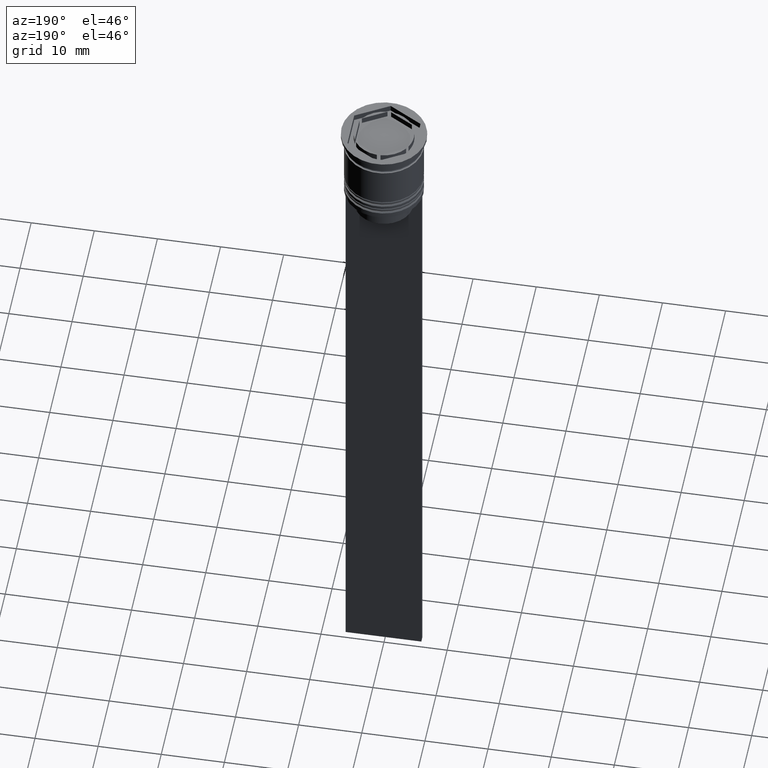
[diagram: clean part render]
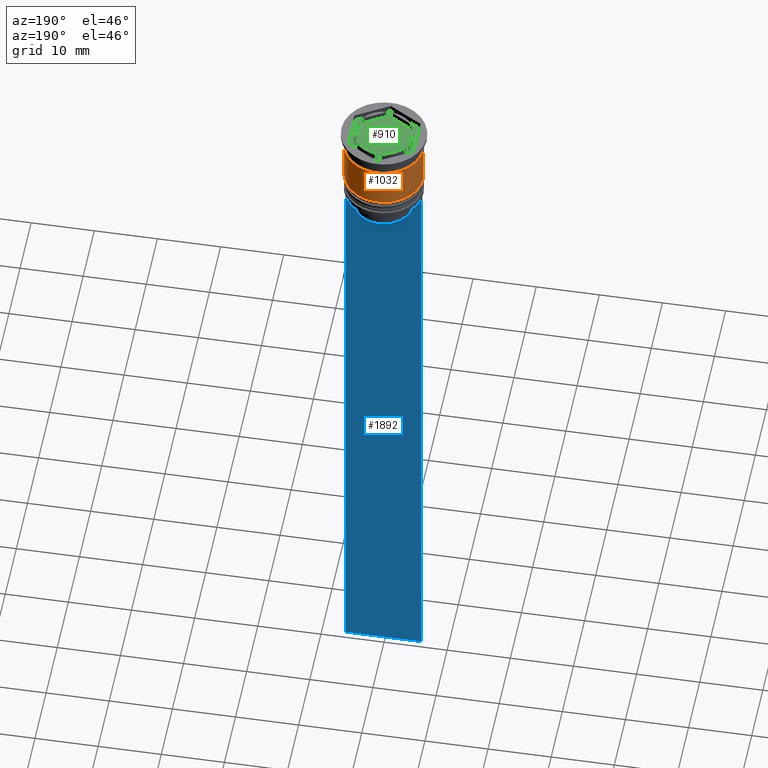
[diagram: same view with three faces highlighted in distinct colors, each labeled with its STEP entity id]
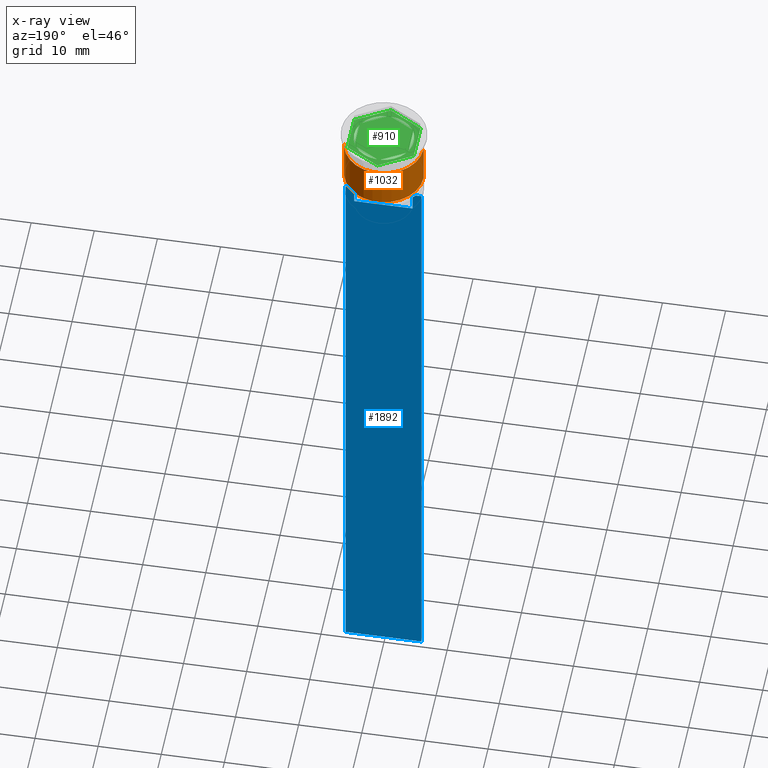
[diagram: x-ray of the same camera — body ghosted, the three highlighted faces saturated]
A machine part, auxiliary view with three faces highlighted in distinct colors.
The next image is the same camera in x-ray (body ghosted, the three faces saturated) — at least one of them is partly hidden behind the body in this view.
Their STEP definitions:

[orange] entity #1032 — the highlighted cylindrical surface (partial cylindrical patch) has radius 6.25 mm, axis along (-0, -0, 1).
#120 = DIRECTION ( 'NONE',  ( -0.000000000000000000, -0.000000000000000000, 1.000000000000000000 ) ) ;
#243 = CIRCLE ( 'NONE', #1158, 6.249999999999999112 ) ;
#340 = ORIENTED_EDGE ( 'NONE', *, *, #2213, .F. ) ;
#466 = CIRCLE ( 'NONE', #533, 6.250000000000000888 ) ;
#531 = CARTESIAN_POINT ( 'NONE',  ( 6.250000000000000888, 0.000000000000000000, -9.000000000000001776 ) ) ;
#533 = AXIS2_PLACEMENT_3D ( 'NONE', #1918, #2077, #1526 ) ;
#628 = VERTEX_POINT ( 'NONE', #531 ) ;
#677 = EDGE_CURVE ( 'NONE', #628, #1986, #1264, .T. ) ;
#742 = CYLINDRICAL_SURFACE ( 'NONE', #1899, 6.250000000000000000 ) ;
#752 = VECTOR ( 'NONE', #2197, 1000.000000000000000 ) ;
#788 = EDGE_CURVE ( 'NONE', #628, #1452, #466, .T. ) ;
#835 = DIRECTION ( 'NONE',  ( 1.000000000000000000, 0.000000000000000000, 0.000000000000000000 ) ) ;
#846 = ORIENTED_EDGE ( 'NONE', *, *, #677, .F. ) ;
#1032 = ADVANCED_FACE ( 'NONE', ( #1291 ), #742, .T. ) ;
#1043 = CARTESIAN_POINT ( 'NONE',  ( 0.000000000000000000, 0.000000000000000000, 0.000000000000000000 ) ) ;
#1053 = DIRECTION ( 'NONE',  ( -0.000000000000000000, -0.000000000000000000, 1.000000000000000000 ) ) ;
#1142 = CARTESIAN_POINT ( 'NONE',  ( -6.250000000000000000, 7.654042494670957606E-16, 0.000000000000000000 ) ) ;
#1158 = AXIS2_PLACEMENT_3D ( 'NONE', #1589, #120, #835 ) ;
#1264 = LINE ( 'NONE', #2018, #752 ) ;
#1285 = EDGE_CURVE ( 'NONE', #1452, #2307, #2043, .T. ) ;
#1291 = FACE_OUTER_BOUND ( 'NONE', #1979, .T. ) ;
#1380 = CARTESIAN_POINT ( 'NONE',  ( -6.249999999999999112, 7.654042494670956620E-16, -2.500000000000000444 ) ) ;
#1452 = VERTEX_POINT ( 'NONE', #1644 ) ;
#1526 = DIRECTION ( 'NONE',  ( 1.000000000000000000, 0.000000000000000000, 0.000000000000000000 ) ) ;
#1536 = CARTESIAN_POINT ( 'NONE',  ( 6.249999999999999112, 0.000000000000000000, -2.500000000000000444 ) ) ;
#1589 = CARTESIAN_POINT ( 'NONE',  ( 0.000000000000000000, 0.000000000000000000, -2.500000000000000444 ) ) ;
#1644 = CARTESIAN_POINT ( 'NONE',  ( -6.250000000000001776, 7.654042494670959579E-16, -9.000000000000001776 ) ) ;
#1767 = DIRECTION ( 'NONE',  ( 1.000000000000000000, 0.000000000000000000, 0.000000000000000000 ) ) ;
#1817 = ORIENTED_EDGE ( 'NONE', *, *, #788, .T. ) ;
#1846 = ORIENTED_EDGE ( 'NONE', *, *, #1285, .T. ) ;
#1865 = VECTOR ( 'NONE', #2222, 1000.000000000000000 ) ;
#1899 = AXIS2_PLACEMENT_3D ( 'NONE', #1043, #1053, #1767 ) ;
#1918 = CARTESIAN_POINT ( 'NONE',  ( 0.000000000000000000, 0.000000000000000000, -9.000000000000001776 ) ) ;
#1979 = EDGE_LOOP ( 'NONE', ( #1817, #1846, #340, #846 ) ) ;
#1986 = VERTEX_POINT ( 'NONE', #1536 ) ;
#2018 = CARTESIAN_POINT ( 'NONE',  ( 6.250000000000000000, 0.000000000000000000, 0.000000000000000000 ) ) ;
#2043 = LINE ( 'NONE', #1142, #1865 ) ;
#2077 = DIRECTION ( 'NONE',  ( -0.000000000000000000, -0.000000000000000000, 1.000000000000000000 ) ) ;
#2197 = DIRECTION ( 'NONE',  ( -0.000000000000000000, -0.000000000000000000, 1.000000000000000000 ) ) ;
#2213 = EDGE_CURVE ( 'NONE', #1986, #2307, #243, .T. ) ;
#2222 = DIRECTION ( 'NONE',  ( -0.000000000000000000, -0.000000000000000000, 1.000000000000000000 ) ) ;
#2307 = VERTEX_POINT ( 'NONE', #1380 ) ;

[blue] entity #1892 — the highlighted planar face has unit normal (0, -1, -0).
#2 = CARTESIAN_POINT ( 'NONE',  ( 6.000000000000016875, 0.4999999999999982792, -112.5000000000000000 ) ) ;
#13 = EDGE_CURVE ( 'NONE', #1060, #1214, #1852, .T. ) ;
#14 = CARTESIAN_POINT ( 'NONE',  ( -4.623040125285526436, 0.4999999999999982792, -13.00000000000000178 ) ) ;
#84 = CARTESIAN_POINT ( 'NONE',  ( -5.999999999999983125, 0.4999999999999982792, -0.4584054212077061097 ) ) ;
#96 = EDGE_CURVE ( 'NONE', #673, #1060, #1738, .T. ) ;
#98 = CARTESIAN_POINT ( 'NONE',  ( 0.000000000000000000, 0.4999999999999987232, -15.50000000000000000 ) ) ;
#131 = ORIENTED_EDGE ( 'NONE', *, *, #776, .T. ) ;
#155 = VECTOR ( 'NONE', #801, 1000.000000000000000 ) ;
#168 = EDGE_CURVE ( 'NONE', #673, #2134, #2079, .T. ) ;
#179 = CARTESIAN_POINT ( 'NONE',  ( -4.623040125285526436, 0.4999999999999982792, -13.00000000000000178 ) ) ;
#207 = LINE ( 'NONE', #2325, #322 ) ;
#271 = CARTESIAN_POINT ( 'NONE',  ( 4.790630799407576745, 0.4999999999999982792, -12.83338098686239093 ) ) ;
#295 = LINE ( 'NONE', #481, #1990 ) ;
#318 = VERTEX_POINT ( 'NONE', #1400 ) ;
#322 = VECTOR ( 'NONE', #2137, 1000.000000000000000 ) ;
#351 = VECTOR ( 'NONE', #962, 1000.000000000000000 ) ;
#426 = CARTESIAN_POINT ( 'NONE',  ( 6.000000000000016875, 0.4999999999999982792, -112.5000000000000000 ) ) ;
#481 = CARTESIAN_POINT ( 'NONE',  ( 4.623040125285526436, 0.4999999999999982792, 0.000000000000000000 ) ) ;
#508 = CARTESIAN_POINT ( 'NONE',  ( 4.623040125285526436, 0.4999999999999987232, -15.50000000000000000 ) ) ;
#552 = CARTESIAN_POINT ( 'NONE',  ( -5.125670687822231564, 0.4999999999999982792, -12.50000000000000000 ) ) ;
#604 = LINE ( 'NONE', #1337, #1377 ) ;
#673 = VERTEX_POINT ( 'NONE', #907 ) ;
#691 = PLANE ( 'NONE',  #771 ) ;
#707 = EDGE_CURVE ( 'NONE', #1268, #2060, #2068, .T. ) ;
#725 = DIRECTION ( 'NONE',  ( 0.000000000000000000, 0.000000000000000000, -1.000000000000000000 ) ) ;
#771 = AXIS2_PLACEMENT_3D ( 'NONE', #2344, #2179, #725 ) ;
#776 = EDGE_CURVE ( 'NONE', #318, #1268, #604, .T. ) ;
#801 = DIRECTION ( 'NONE',  ( 0.000000000000000000, 0.000000000000000000, -1.000000000000000000 ) ) ;
#802 = EDGE_CURVE ( 'NONE', #1250, #318, #1329, .T. ) ;
#805 = CARTESIAN_POINT ( 'NONE',  ( -5.999999999999983125, 0.4999999999999982792, -112.5000000000000000 ) ) ;
#810 = DIRECTION ( 'NONE',  ( 1.000000000000000000, 0.000000000000000000, 0.000000000000000000 ) ) ;
#839 = CARTESIAN_POINT ( 'NONE',  ( -5.125670687822231564, 0.4999999999999982792, -12.50000000000000000 ) ) ;
#892 = CARTESIAN_POINT ( 'NONE',  ( 6.000000000000016875, 0.4999999999999982792, -12.50000000000000000 ) ) ;
#899 = ORIENTED_EDGE ( 'NONE', *, *, #1820, .T. ) ;
#907 = CARTESIAN_POINT ( 'NONE',  ( -5.999999999999983125, 0.4999999999999985012, -12.50000000000000000 ) ) ;
#946 = ORIENTED_EDGE ( 'NONE', *, *, #13, .T. ) ;
#962 = DIRECTION ( 'NONE',  ( 0.000000000000000000, 0.000000000000000000, -1.000000000000000000 ) ) ;
#1035 = ORIENTED_EDGE ( 'NONE', *, *, #1240, .T. ) ;
#1059 = VERTEX_POINT ( 'NONE', #508 ) ;
#1060 = VERTEX_POINT ( 'NONE', #839 ) ;
#1122 = EDGE_CURVE ( 'NONE', #1318, #1059, #1962, .T. ) ;
#1129 = CARTESIAN_POINT ( 'NONE',  ( -4.623040125285526436, 0.4999999999999987232, -15.50000000000000000 ) ) ;
#1157 = DIRECTION ( 'NONE',  ( 1.000000000000000000, 0.000000000000000000, 0.000000000000000000 ) ) ;
#1214 = VERTEX_POINT ( 'NONE', #179 ) ;
#1240 = EDGE_CURVE ( 'NONE', #2060, #2134, #2316, .T. ) ;
#1250 = VERTEX_POINT ( 'NONE', #2159 ) ;
#1268 = VERTEX_POINT ( 'NONE', #892 ) ;
#1282 = ORIENTED_EDGE ( 'NONE', *, *, #802, .T. ) ;
#1318 = VERTEX_POINT ( 'NONE', #1129 ) ;
#1329 = B_SPLINE_CURVE_WITH_KNOTS ( 'NONE', 3,
 ( #1736, #271, #1368, #1540 ),
 .UNSPECIFIED., .F., .F.,
 ( 4, 4 ),
 ( 0.02203698174624552433, 0.02275222543365896036 ),
 .UNSPECIFIED. ) ;
#1337 = CARTESIAN_POINT ( 'NONE',  ( 6.000000000000016875, 0.4999999999999982792, -12.50000000000000000 ) ) ;
#1368 = CARTESIAN_POINT ( 'NONE',  ( 4.958169719475987058, 0.4999999999999982792, -12.66670967060858111 ) ) ;
#1377 = VECTOR ( 'NONE', #1157, 1000.000000000000000 ) ;
#1400 = CARTESIAN_POINT ( 'NONE',  ( 5.125670687822231564, 0.4999999999999982792, -12.50000000000000000 ) ) ;
#1428 = DIRECTION ( 'NONE',  ( -1.000000000000000000, 0.000000000000000000, 0.000000000000000000 ) ) ;
#1471 = FACE_OUTER_BOUND ( 'NONE', #2118, .T. ) ;
#1540 = CARTESIAN_POINT ( 'NONE',  ( 5.125670687822231564, 0.4999999999999982792, -12.50000000000000000 ) ) ;
#1672 = ORIENTED_EDGE ( 'NONE', *, *, #1122, .T. ) ;
#1736 = CARTESIAN_POINT ( 'NONE',  ( 4.623040125285526436, 0.4999999999999982792, -13.00000000000000178 ) ) ;
#1738 = LINE ( 'NONE', #2257, #1831 ) ;
#1744 = DIRECTION ( 'NONE',  ( -0.000000000000000000, -0.000000000000000000, 1.000000000000000000 ) ) ;
#1820 = EDGE_CURVE ( 'NONE', #1214, #1318, #207, .T. ) ;
#1831 = VECTOR ( 'NONE', #810, 1000.000000000000000 ) ;
#1852 = B_SPLINE_CURVE_WITH_KNOTS ( 'NONE', 3,
 ( #552, #2003, #2027, #14 ),
 .UNSPECIFIED., .F., .F.,
 ( 4, 4 ),
 ( 0.008759809102772707357, 0.009468778395565351919 ),
 .UNSPECIFIED. ) ;
#1866 = CARTESIAN_POINT ( 'NONE',  ( 6.000000000000016875, 0.4999999999999982792, -0.4584054212077061097 ) ) ;
#1892 = ADVANCED_FACE ( 'NONE', ( #1471 ), #691, .F. ) ;
#1924 = DIRECTION ( 'NONE',  ( 1.000000000000000000, 0.000000000000000000, 0.000000000000000000 ) ) ;
#1962 = LINE ( 'NONE', #98, #2055 ) ;
#1990 = VECTOR ( 'NONE', #1744, 1000.000000000000000 ) ;
#2003 = CARTESIAN_POINT ( 'NONE',  ( -4.958169823806762189, 0.4999999999999982792, -12.66670956677067750 ) ) ;
#2027 = CARTESIAN_POINT ( 'NONE',  ( -4.790630915080666519, 0.4999999999999982792, -12.83338087185995313 ) ) ;
#2055 = VECTOR ( 'NONE', #1924, 1000.000000000000000 ) ;
#2060 = VERTEX_POINT ( 'NONE', #426 ) ;
#2068 = LINE ( 'NONE', #1866, #351 ) ;
#2079 = LINE ( 'NONE', #84, #155 ) ;
#2118 = EDGE_LOOP ( 'NONE', ( #2163, #946, #899, #1672, #2254, #1282, #131, #2145, #1035, #2230 ) ) ;
#2134 = VERTEX_POINT ( 'NONE', #805 ) ;
#2137 = DIRECTION ( 'NONE',  ( 0.000000000000000000, 0.000000000000000000, -1.000000000000000000 ) ) ;
#2145 = ORIENTED_EDGE ( 'NONE', *, *, #707, .T. ) ;
#2159 = CARTESIAN_POINT ( 'NONE',  ( 4.623040125285526436, 0.4999999999999982792, -13.00000000000000178 ) ) ;
#2163 = ORIENTED_EDGE ( 'NONE', *, *, #96, .T. ) ;
#2179 = DIRECTION ( 'NONE',  ( 0.000000000000000000, -1.000000000000000000, -0.000000000000000000 ) ) ;
#2230 = ORIENTED_EDGE ( 'NONE', *, *, #168, .F. ) ;
#2254 = ORIENTED_EDGE ( 'NONE', *, *, #2280, .T. ) ;
#2257 = CARTESIAN_POINT ( 'NONE',  ( 6.000000000000016875, 0.4999999999999982792, -12.50000000000000000 ) ) ;
#2280 = EDGE_CURVE ( 'NONE', #1059, #1250, #295, .T. ) ;
#2316 = LINE ( 'NONE', #2, #2341 ) ;
#2325 = CARTESIAN_POINT ( 'NONE',  ( -4.623040125285526436, 0.4999999999999982792, 0.000000000000000000 ) ) ;
#2341 = VECTOR ( 'NONE', #1428, 1000.000000000000000 ) ;
#2344 = CARTESIAN_POINT ( 'NONE',  ( 6.000000000000016875, 0.4999999999999982792, -0.4584054212077061097 ) ) ;

[green] entity #910 — the highlighted planar face has unit normal (0, 0, 1).
#22 = EDGE_LOOP ( 'NONE', ( #1612, #401 ) ) ;
#36 = CARTESIAN_POINT ( 'NONE',  ( 0.000000000000000000, 0.000000000000000000, -1.000000000000000000 ) ) ;
#41 = LINE ( 'NONE', #591, #1613 ) ;
#63 = DIRECTION ( 'NONE',  ( 0.000000000000000000, 0.000000000000000000, 1.000000000000000000 ) ) ;
#64 = ORIENTED_EDGE ( 'NONE', *, *, #2178, .F. ) ;
#65 = LINE ( 'NONE', #1929, #117 ) ;
#117 = VECTOR ( 'NONE', #298, 1000.000000000000227 ) ;
#140 = EDGE_LOOP ( 'NONE', ( #2036, #64 ) ) ;
#143 = CARTESIAN_POINT ( 'NONE',  ( -4.250000000000000000, 2.453738644055909468, -1.000000000000000888 ) ) ;
#153 = CIRCLE ( 'NONE', #1827, 4.750000000000000888 ) ;
#165 = ORIENTED_EDGE ( 'NONE', *, *, #2264, .F. ) ;
#166 = VECTOR ( 'NONE', #194, 1000.000000000000227 ) ;
#167 = CARTESIAN_POINT ( 'NONE',  ( -4.250000000000000000, 2.121320343559643717, -1.000000000000000888 ) ) ;
#170 = VERTEX_POINT ( 'NONE', #2072 ) ;
#175 = VERTEX_POINT ( 'NONE', #652 ) ;
#177 = EDGE_LOOP ( 'NONE', ( #1289, #165, #1245 ) ) ;
#178 = DIRECTION ( 'NONE',  ( 0.000000000000000000, 0.000000000000000000, 1.000000000000000000 ) ) ;
#186 = EDGE_CURVE ( 'NONE', #1611, #1108, #65, .T. ) ;
#194 = DIRECTION ( 'NONE',  ( -0.8660254037844385966, -0.5000000000000000000, 0.000000000000000000 ) ) ;
#204 = DIRECTION ( 'NONE',  ( 0.000000000000000000, 0.000000000000000000, 1.000000000000000000 ) ) ;
#208 = CIRCLE ( 'NONE', #2170, 4.750000000000000888 ) ;
#215 = DIRECTION ( 'NONE',  ( 0.000000000000000000, 0.000000000000000000, 1.000000000000000000 ) ) ;
#216 = EDGE_CURVE ( 'NONE', #1279, #1835, #1587, .T. ) ;
#221 = LINE ( 'NONE', #1677, #1160 ) ;
#228 = FACE_BOUND ( 'NONE', #22, .T. ) ;
#242 = PLANE ( 'NONE',  #269 ) ;
#264 = CARTESIAN_POINT ( 'NONE',  ( 5.250000000000000888, -3.031088913245536087, -1.000000000000000000 ) ) ;
#269 = AXIS2_PLACEMENT_3D ( 'NONE', #2025, #63, #766 ) ;
#270 = VERTEX_POINT ( 'NONE', #167 ) ;
#273 = EDGE_CURVE ( 'NONE', #1957, #1479, #758, .T. ) ;
#288 = EDGE_CURVE ( 'NONE', #1127, #175, #666, .T. ) ;
#289 = EDGE_CURVE ( 'NONE', #175, #1127, #2021, .T. ) ;
#298 = DIRECTION ( 'NONE',  ( -0.8660254037844385966, 0.4999999999999998890, 0.000000000000000000 ) ) ;
#306 = LINE ( 'NONE', #2318, #1840 ) ;
#312 = VERTEX_POINT ( 'NONE', #1814 ) ;
#323 = ORIENTED_EDGE ( 'NONE', *, *, #1861, .T. ) ;
#352 = DIRECTION ( 'NONE',  ( 1.000000000000000000, 0.000000000000000000, 0.000000000000000000 ) ) ;
#357 = VECTOR ( 'NONE', #477, 1000.000000000000000 ) ;
#401 = ORIENTED_EDGE ( 'NONE', *, *, #847, .F. ) ;
#402 = DIRECTION ( 'NONE',  ( 1.000000000000000000, 0.000000000000000000, 0.000000000000000000 ) ) ;
#434 = VECTOR ( 'NONE', #1922, 1000.000000000000000 ) ;
#477 = DIRECTION ( 'NONE',  ( -0.8660254037844385966, 0.5000000000000001110, 0.000000000000000000 ) ) ;
#497 = VECTOR ( 'NONE', #1339, 1000.000000000000000 ) ;
#514 = ORIENTED_EDGE ( 'NONE', *, *, #289, .F. ) ;
#515 = VERTEX_POINT ( 'NONE', #2131 ) ;
#518 = CARTESIAN_POINT ( 'NONE',  ( -5.250000000000000888, -3.031088913245536087, -1.000000000000000000 ) ) ;
#525 = ORIENTED_EDGE ( 'NONE', *, *, #1105, .F. ) ;
#527 = CARTESIAN_POINT ( 'NONE',  ( 0.000000000000000000, 0.000000000000000000, -1.000000000000000000 ) ) ;
#528 = DIRECTION ( 'NONE',  ( 1.000000000000000000, 0.000000000000000000, 0.000000000000000000 ) ) ;
#540 = CARTESIAN_POINT ( 'NONE',  ( -8.673617379884035472E-16, -4.907477288111819824, -1.000000000000000888 ) ) ;
#562 = CARTESIAN_POINT ( 'NONE',  ( -5.250000000000000888, 3.031088913245535643, -1.000000000000000000 ) ) ;
#570 = AXIS2_PLACEMENT_3D ( 'NONE', #1642, #917, #528 ) ;
#579 = VECTOR ( 'NONE', #1085, 1000.000000000000000 ) ;
#591 = CARTESIAN_POINT ( 'NONE',  ( 4.250000000000000000, 2.453738644055910800, -1.000000000000000888 ) ) ;
#606 = DIRECTION ( 'NONE',  ( 0.000000000000000000, 0.000000000000000000, 1.000000000000000000 ) ) ;
#614 = DIRECTION ( 'NONE',  ( 0.000000000000000000, -1.000000000000000000, 0.000000000000000000 ) ) ;
#649 = AXIS2_PLACEMENT_3D ( 'NONE', #1777, #2156, #1944 ) ;
#652 = CARTESIAN_POINT ( 'NONE',  ( 0.2878826929126150347, -4.741268137863686505, -1.000000000000000888 ) ) ;
#653 = LINE ( 'NONE', #264, #434 ) ;
#657 = CARTESIAN_POINT ( 'NONE',  ( 3.962117307087384521, -2.619947794304042787, -1.000000000000000888 ) ) ;
#666 = LINE ( 'NONE', #540, #579 ) ;
#695 = CARTESIAN_POINT ( 'NONE',  ( -0.2878826929126160894, 4.741268137863686505, -1.000000000000000888 ) ) ;
#719 = AXIS2_PLACEMENT_3D ( 'NONE', #2288, #606, #1186 ) ;
#749 = EDGE_LOOP ( 'NONE', ( #525, #2129 ) ) ;
#758 = CIRCLE ( 'NONE', #649, 4.750000000000000888 ) ;
#766 = DIRECTION ( 'NONE',  ( 1.000000000000000000, 0.000000000000000000, -0.000000000000000000 ) ) ;
#780 = FACE_BOUND ( 'NONE', #2218, .T. ) ;
#783 = DIRECTION ( 'NONE',  ( 0.8660254037844387076, -0.4999999999999998335, 0.000000000000000000 ) ) ;
#789 = VERTEX_POINT ( 'NONE', #1901 ) ;
#808 = LINE ( 'NONE', #1549, #497 ) ;
#847 = EDGE_CURVE ( 'NONE', #789, #1231, #808, .T. ) ;
#883 = VERTEX_POINT ( 'NONE', #2084 ) ;
#910 = ADVANCED_FACE ( 'NONE', ( #2069, #780, #1478, #2202, #2188, #228, #1698 ), #242, .T. ) ;
#914 = CARTESIAN_POINT ( 'NONE',  ( 0.000000000000000000, 0.000000000000000000, -1.000000000000000000 ) ) ;
#917 = DIRECTION ( 'NONE',  ( 0.000000000000000000, 0.000000000000000000, 1.000000000000000000 ) ) ;
#918 = CARTESIAN_POINT ( 'NONE',  ( 4.249999999999999112, 2.121320343559644162, -1.000000000000000888 ) ) ;
#922 = EDGE_CURVE ( 'NONE', #515, #312, #1300, .T. ) ;
#975 = EDGE_CURVE ( 'NONE', #270, #515, #153, .T. ) ;
#980 = CARTESIAN_POINT ( 'NONE',  ( 5.250000000000000888, 3.031088913245536087, -1.000000000000000000 ) ) ;
#984 = CIRCLE ( 'NONE', #719, 4.750000000000000888 ) ;
#1023 = CARTESIAN_POINT ( 'NONE',  ( 5.250000000000000888, -3.031088913245536087, -1.000000000000000000 ) ) ;
#1038 = CARTESIAN_POINT ( 'NONE',  ( -4.250000000000000000, -2.453738644055909912, -1.000000000000000888 ) ) ;
#1040 = DIRECTION ( 'NONE',  ( 1.000000000000000000, 0.000000000000000000, 0.000000000000000000 ) ) ;
#1050 = LINE ( 'NONE', #143, #1233 ) ;
#1073 = EDGE_LOOP ( 'NONE', ( #514, #1199 ) ) ;
#1085 = DIRECTION ( 'NONE',  ( -0.8660254037844387076, -0.4999999999999999445, 0.000000000000000000 ) ) ;
#1086 = CARTESIAN_POINT ( 'NONE',  ( 0.2878826929126145906, 4.741268137863685617, -1.000000000000000888 ) ) ;
#1105 = EDGE_CURVE ( 'NONE', #1648, #1845, #984, .T. ) ;
#1108 = VERTEX_POINT ( 'NONE', #1237 ) ;
#1127 = VERTEX_POINT ( 'NONE', #657 ) ;
#1160 = VECTOR ( 'NONE', #1876, 1000.000000000000000 ) ;
#1186 = DIRECTION ( 'NONE',  ( 1.000000000000000000, 0.000000000000000000, 0.000000000000000000 ) ) ;
#1199 = ORIENTED_EDGE ( 'NONE', *, *, #288, .F. ) ;
#1224 = EDGE_CURVE ( 'NONE', #883, #170, #1296, .T. ) ;
#1231 = VERTEX_POINT ( 'NONE', #695 ) ;
#1233 = VECTOR ( 'NONE', #1776, 1000.000000000000000 ) ;
#1237 = CARTESIAN_POINT ( 'NONE',  ( 0.000000000000000000, 6.062177826491072175, -1.000000000000000000 ) ) ;
#1245 = ORIENTED_EDGE ( 'NONE', *, *, #922, .F. ) ;
#1262 = ORIENTED_EDGE ( 'NONE', *, *, #273, .F. ) ;
#1279 = VERTEX_POINT ( 'NONE', #518 ) ;
#1289 = ORIENTED_EDGE ( 'NONE', *, *, #975, .F. ) ;
#1296 = CIRCLE ( 'NONE', #570, 4.750000000000000888 ) ;
#1300 = CIRCLE ( 'NONE', #1603, 4.750000000000000888 ) ;
#1301 = ORIENTED_EDGE ( 'NONE', *, *, #2020, .F. ) ;
#1339 = DIRECTION ( 'NONE',  ( 0.8660254037844385966, 0.5000000000000001110, -0.000000000000000000 ) ) ;
#1396 = DIRECTION ( 'NONE',  ( 0.8660254037844387076, -0.4999999999999998335, 0.000000000000000000 ) ) ;
#1451 = VECTOR ( 'NONE', #1396, 1000.000000000000000 ) ;
#1461 = CARTESIAN_POINT ( 'NONE',  ( 8.729740977282959667E-16, -6.062177826491071286, -1.000000000000000000 ) ) ;
#1476 = ORIENTED_EDGE ( 'NONE', *, *, #216, .T. ) ;
#1478 = FACE_BOUND ( 'NONE', #1073, .T. ) ;
#1479 = VERTEX_POINT ( 'NONE', #918 ) ;
#1522 = CARTESIAN_POINT ( 'NONE',  ( -5.250000000000000888, 3.031088913245535643, -1.000000000000000000 ) ) ;
#1549 = CARTESIAN_POINT ( 'NONE',  ( 4.336808689942017736E-16, 4.907477288111819824, -1.000000000000000888 ) ) ;
#1577 = LINE ( 'NONE', #1038, #357 ) ;
#1579 = CARTESIAN_POINT ( 'NONE',  ( 0.000000000000000000, 0.000000000000000000, -1.000000000000000000 ) ) ;
#1586 = ORIENTED_EDGE ( 'NONE', *, *, #186, .T. ) ;
#1587 = LINE ( 'NONE', #1941, #1451 ) ;
#1603 = AXIS2_PLACEMENT_3D ( 'NONE', #36, #215, #402 ) ;
#1611 = VERTEX_POINT ( 'NONE', #980 ) ;
#1612 = ORIENTED_EDGE ( 'NONE', *, *, #1878, .F. ) ;
#1613 = VECTOR ( 'NONE', #783, 1000.000000000000000 ) ;
#1642 = CARTESIAN_POINT ( 'NONE',  ( 0.000000000000000000, 0.000000000000000000, -1.000000000000000000 ) ) ;
#1648 = VERTEX_POINT ( 'NONE', #2287 ) ;
#1659 = ORIENTED_EDGE ( 'NONE', *, *, #2216, .T. ) ;
#1671 = VERTEX_POINT ( 'NONE', #1023 ) ;
#1677 = CARTESIAN_POINT ( 'NONE',  ( 4.249999999999999112, -2.453738644055910356, -1.000000000000000888 ) ) ;
#1698 = FACE_OUTER_BOUND ( 'NONE', #2144, .T. ) ;
#1776 = DIRECTION ( 'NONE',  ( 0.000000000000000000, 1.000000000000000000, 0.000000000000000000 ) ) ;
#1777 = CARTESIAN_POINT ( 'NONE',  ( 0.000000000000000000, 0.000000000000000000, -1.000000000000000000 ) ) ;
#1795 = VERTEX_POINT ( 'NONE', #562 ) ;
#1801 = VECTOR ( 'NONE', #614, 1000.000000000000000 ) ;
#1814 = CARTESIAN_POINT ( 'NONE',  ( -4.250000000000000000, -2.121320343559643717, -1.000000000000000888 ) ) ;
#1815 = LINE ( 'NONE', #2147, #166 ) ;
#1827 = AXIS2_PLACEMENT_3D ( 'NONE', #914, #204, #2176 ) ;
#1835 = VERTEX_POINT ( 'NONE', #1461 ) ;
#1840 = VECTOR ( 'NONE', #1952, 1000.000000000000114 ) ;
#1845 = VERTEX_POINT ( 'NONE', #1086 ) ;
#1861 = EDGE_CURVE ( 'NONE', #1108, #1795, #1815, .T. ) ;
#1862 = LINE ( 'NONE', #1522, #1801 ) ;
#1876 = DIRECTION ( 'NONE',  ( -1.767428939690775055E-16, -1.000000000000000000, 0.000000000000000000 ) ) ;
#1878 = EDGE_CURVE ( 'NONE', #1231, #789, #208, .T. ) ;
#1901 = CARTESIAN_POINT ( 'NONE',  ( -3.962117307087385409, 2.619947794304041899, -1.000000000000000888 ) ) ;
#1911 = AXIS2_PLACEMENT_3D ( 'NONE', #1579, #2333, #1040 ) ;
#1922 = DIRECTION ( 'NONE',  ( 0.000000000000000000, 1.000000000000000000, 0.000000000000000000 ) ) ;
#1929 = CARTESIAN_POINT ( 'NONE',  ( 5.250000000000000888, 3.031088913245536087, -1.000000000000000000 ) ) ;
#1935 = ORIENTED_EDGE ( 'NONE', *, *, #2098, .T. ) ;
#1941 = CARTESIAN_POINT ( 'NONE',  ( -5.250000000000000888, -3.031088913245536087, -1.000000000000000000 ) ) ;
#1944 = DIRECTION ( 'NONE',  ( 1.000000000000000000, 0.000000000000000000, 0.000000000000000000 ) ) ;
#1952 = DIRECTION ( 'NONE',  ( 0.8660254037844385966, 0.4999999999999999445, 0.000000000000000000 ) ) ;
#1957 = VERTEX_POINT ( 'NONE', #2208 ) ;
#2020 = EDGE_CURVE ( 'NONE', #1479, #1957, #221, .T. ) ;
#2021 = CIRCLE ( 'NONE', #1911, 4.750000000000000888 ) ;
#2025 = CARTESIAN_POINT ( 'NONE',  ( 0.000000000000000000, 0.000000000000000000, -1.000000000000000000 ) ) ;
#2036 = ORIENTED_EDGE ( 'NONE', *, *, #1224, .F. ) ;
#2069 = FACE_BOUND ( 'NONE', #749, .T. ) ;
#2072 = CARTESIAN_POINT ( 'NONE',  ( -0.2878826929126160894, -4.741268137863686505, -1.000000000000000888 ) ) ;
#2075 = EDGE_CURVE ( 'NONE', #1845, #1648, #41, .T. ) ;
#2084 = CARTESIAN_POINT ( 'NONE',  ( -3.962117307087385409, -2.619947794304041899, -1.000000000000000888 ) ) ;
#2098 = EDGE_CURVE ( 'NONE', #1795, #1279, #1862, .T. ) ;
#2129 = ORIENTED_EDGE ( 'NONE', *, *, #2075, .F. ) ;
#2131 = CARTESIAN_POINT ( 'NONE',  ( -4.750000000000000888, 0.000000000000000000, -1.000000000000000000 ) ) ;
#2144 = EDGE_LOOP ( 'NONE', ( #1586, #323, #1935, #1476, #2317, #1659 ) ) ;
#2147 = CARTESIAN_POINT ( 'NONE',  ( 0.000000000000000000, 6.062177826491072175, -1.000000000000000000 ) ) ;
#2156 = DIRECTION ( 'NONE',  ( 0.000000000000000000, 0.000000000000000000, 1.000000000000000000 ) ) ;
#2170 = AXIS2_PLACEMENT_3D ( 'NONE', #527, #178, #352 ) ;
#2176 = DIRECTION ( 'NONE',  ( 1.000000000000000000, 0.000000000000000000, 0.000000000000000000 ) ) ;
#2178 = EDGE_CURVE ( 'NONE', #170, #883, #1577, .T. ) ;
#2188 = FACE_BOUND ( 'NONE', #177, .T. ) ;
#2202 = FACE_BOUND ( 'NONE', #140, .T. ) ;
#2208 = CARTESIAN_POINT ( 'NONE',  ( 4.249999999999999112, -2.121320343559645938, -1.000000000000000888 ) ) ;
#2216 = EDGE_CURVE ( 'NONE', #1671, #1611, #653, .T. ) ;
#2218 = EDGE_LOOP ( 'NONE', ( #1262, #1301 ) ) ;
#2264 = EDGE_CURVE ( 'NONE', #312, #270, #1050, .T. ) ;
#2287 = CARTESIAN_POINT ( 'NONE',  ( 3.962117307087384521, 2.619947794304043232, -1.000000000000000888 ) ) ;
#2288 = CARTESIAN_POINT ( 'NONE',  ( 0.000000000000000000, 0.000000000000000000, -1.000000000000000000 ) ) ;
#2317 = ORIENTED_EDGE ( 'NONE', *, *, #2339, .T. ) ;
#2318 = CARTESIAN_POINT ( 'NONE',  ( 8.729740977282959667E-16, -6.062177826491071286, -1.000000000000000000 ) ) ;
#2333 = DIRECTION ( 'NONE',  ( 0.000000000000000000, 0.000000000000000000, 1.000000000000000000 ) ) ;
#2339 = EDGE_CURVE ( 'NONE', #1835, #1671, #306, .T. ) ;